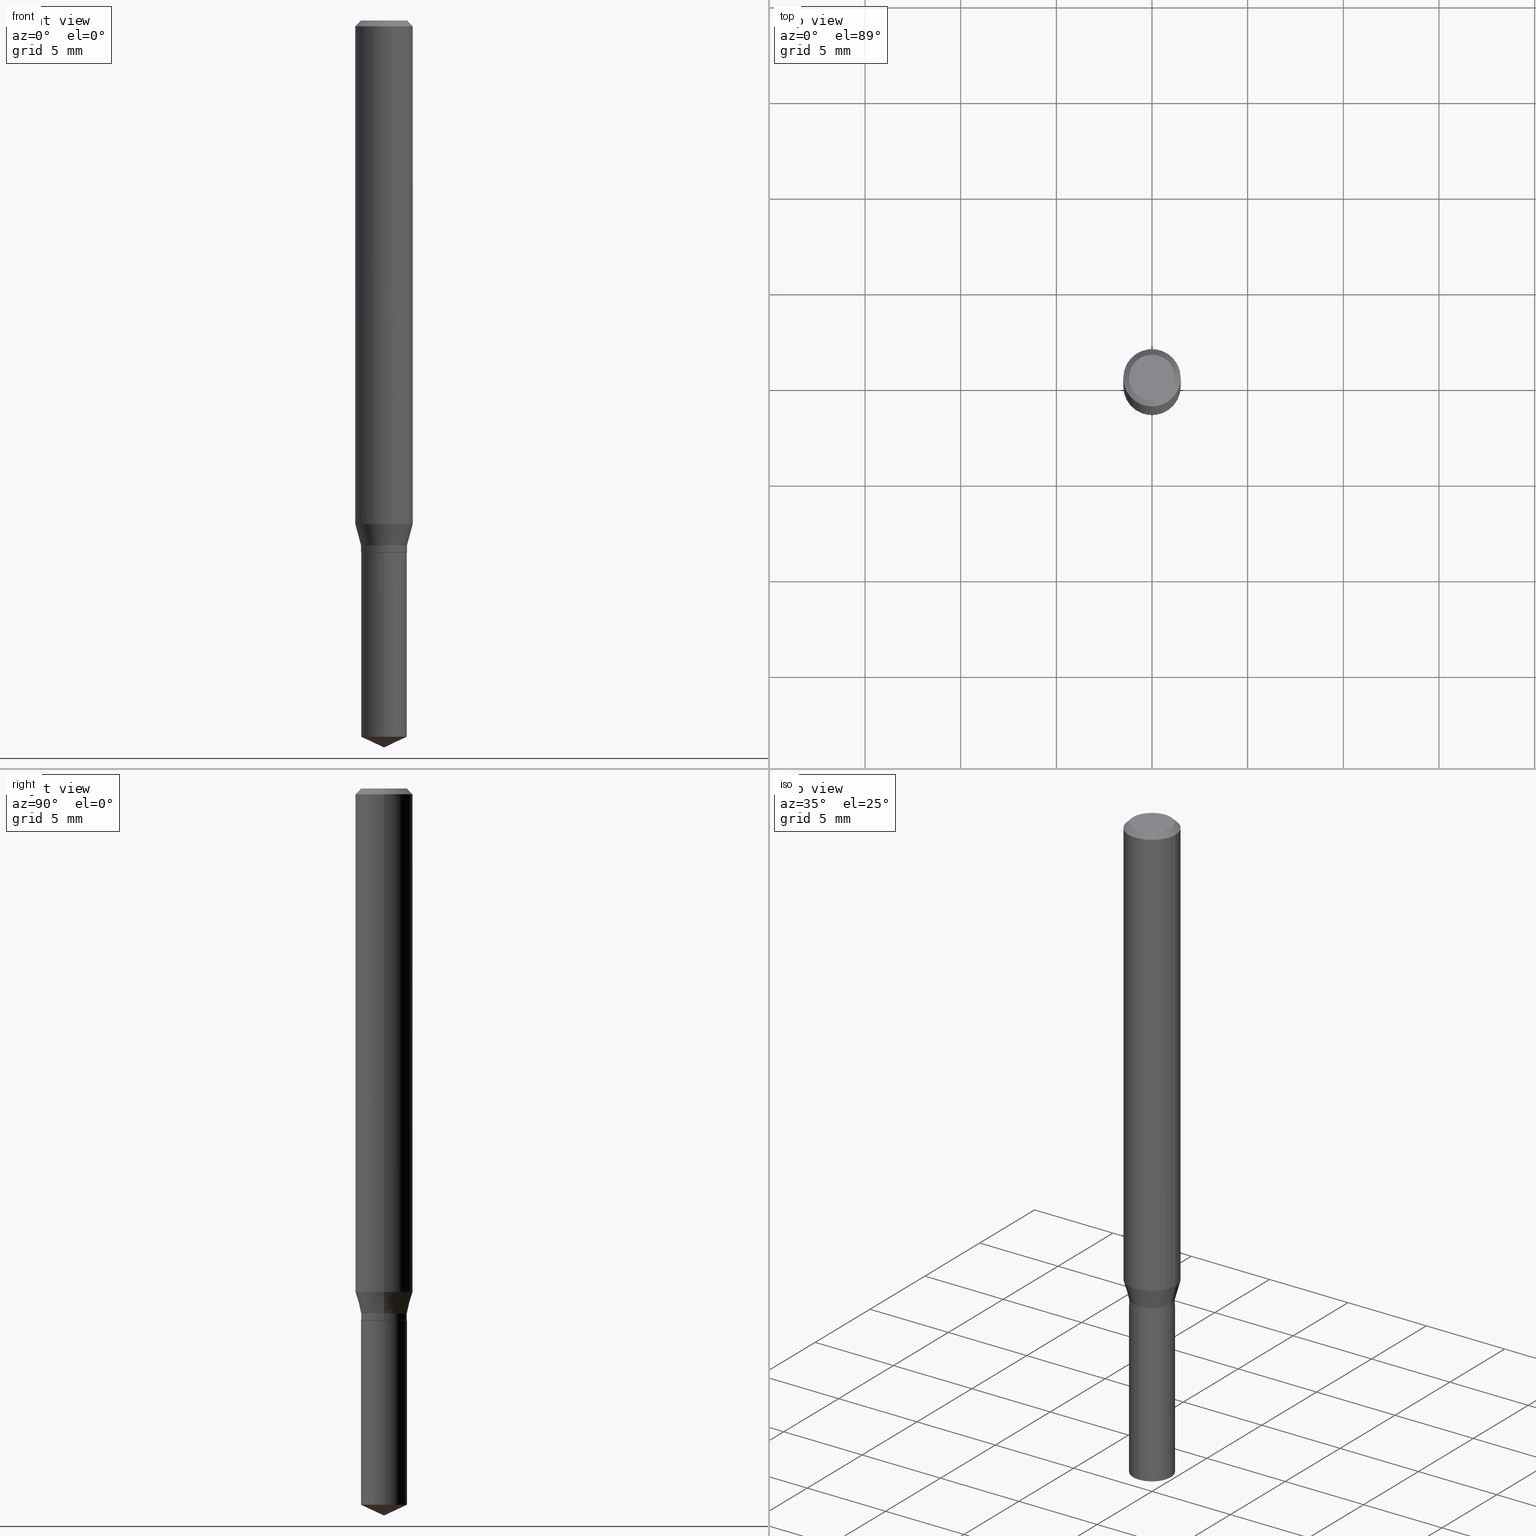
[diagram: canonical four-view strip — front | top / right | iso, engineering-drawing reading convention]
A machine part, canonical four-view strip (front | top / right | iso — engineering-drawing reading convention). The complete STEP part file that produces these views, byte-faithful:
ISO-10303-21;
HEADER;
FILE_DESCRIPTION (( 'STEP AP203' ),
    '1' );
FILE_NAME ('08385.STEP',
    '2024-04-24T14:47:35',
    ( '' ),
    ( '' ),
    'SwSTEP 2.0',
    'SolidWorks 2023',
    '' );
FILE_SCHEMA (( 'CONFIG_CONTROL_DESIGN' ));
ENDSEC;

DATA;
#1 = FACE_OUTER_BOUND ( 'NONE', #233, .T. ) ;
#2 = DIRECTION ( 'NONE',  ( 2.445358326776454949E-29, -3.491639551644474585E-15, -1.000000000000000000 ) ) ;
#3 = DIRECTION ( 'NONE',  ( -6.982962677686267499E-15, -1.000000000000000000, 3.520397390770433360E-15 ) ) ;
#4 = APPROVAL_ROLE ( '' ) ;
#5 = AXIS2_PLACEMENT_3D ( 'NONE', #383, #384, #78 ) ;
#6 = DIRECTION ( 'NONE',  ( 1.000000000000000000, -6.982962677686269077E-15, 0.000000000000000000 ) ) ;
#7 = DIRECTION ( 'NONE',  ( 0.7071067811865173747, -2.468850131081940727E-15, 0.7071067811865776598 ) ) ;
#8 = PERSON_AND_ORGANIZATION ( #63, #277 ) ;
#9 = CC_DESIGN_PERSON_AND_ORGANIZATION_ASSIGNMENT ( #8, #47, ( #85 ) ) ;
#10 = FACE_OUTER_BOUND ( 'NONE', #368, .T. ) ;
#11 = AXIS2_PLACEMENT_3D ( 'NONE', #200, #420, #71 ) ;
#12 = APPROVAL_PERSON_ORGANIZATION ( #36, #134, #242 ) ;
#13 = CARTESIAN_POINT ( 'NONE',  ( 2.641839951321803071E-29, -3.771847290352249705E-15, -1.080300000000000038 ) ) ;
#14 = CARTESIAN_POINT ( 'NONE',  ( -0.05905000000000013016, -3.198513253033061898E-15, -1.036261800470686723 ) ) ;
#15 = CC_DESIGN_PERSON_AND_ORGANIZATION_ASSIGNMENT ( #399, #163, ( #372 ) ) ;
#16 = CARTESIAN_POINT ( 'NONE',  ( -0.04724000000000000421, 3.504923541997677355E-16, -3.380025165670481712E-19 ) ) ;
#17 = ORIENTED_EDGE ( 'NONE', *, *, #199, .T. ) ;
#18 = AXIS2_PLACEMENT_3D ( 'NONE', #314, #68, #241 ) ;
#19 = DIRECTION ( 'NONE',  ( -2.445468806185136597E-29, 3.491481338843145583E-15, 1.000000000000000000 ) ) ;
#20 = EDGE_LOOP ( 'NONE', ( #419, #343, #187, #129 ) ) ;
#21 = DIRECTION ( 'NONE',  ( 1.000000000000000000, -6.982962677686267499E-15, 0.000000000000000000 ) ) ;
#22 = ORIENTED_EDGE ( 'NONE', *, *, #414, .T. ) ;
#23 = CARTESIAN_POINT ( 'NONE',  ( 3.357314426466833320E-16, 0.04724999999999617006, -1.094500000000000028 ) ) ;
#24 = VERTEX_POINT ( 'NONE', #223 ) ;
#25 = CARTESIAN_POINT ( 'NONE',  ( -9.261532836068574158E-28, 1.322424553111868898E-13, 37.87397874015748300 ) ) ;
#26 = VECTOR ( 'NONE', #375, 39.37007874015748143 ) ;
#27 = CC_DESIGN_APPROVAL ( #134, ( #482 ) ) ;
#28 = VERTEX_POINT ( 'NONE', #413 ) ;
#29 = PLANE ( 'NONE',  #347 ) ;
#30 = ORIENTED_EDGE ( 'NONE', *, *, #217, .F. ) ;
#31 = EDGE_CURVE ( 'NONE', #220, #132, #301, .T. ) ;
#32 = DIRECTION ( 'NONE',  ( 1.000000000000000000, -6.982962677686266711E-15, 4.876185090822587894E-29 ) ) ;
#33 = CARTESIAN_POINT ( 'NONE',  ( 2.676565608369631794E-29, -3.821426325363822773E-15, -1.094499999999999806 ) ) ;
#34 = VECTOR ( 'NONE', #256, 39.37007874015748143 ) ;
#35 = CIRCLE ( 'NONE', #123, 0.04724999999999999339 ) ;
#36 = PERSON_AND_ORGANIZATION ( #63, #277 ) ;
#37 = DIRECTION ( 'NONE',  ( 1.000000000000000000, -6.982962677686265133E-15, 0.000000000000000000 ) ) ;
#38 = CARTESIAN_POINT ( 'NONE',  ( -3.299449865206398677E-16, -0.04725000000000512818, -1.474066963152176113 ) ) ;
#39 = FACE_OUTER_BOUND ( 'NONE', #20, .T. ) ;
#40 = PRODUCT ( '08385', '08385', '', ( #352 ) ) ;
#41 = COORDINATED_UNIVERSAL_TIME_OFFSET ( 5, 0, .BEHIND. ) ;
#42 = MANIFOLD_SOLID_BREP ( 'Body-Move/Copy2[2]', #84 ) ;
#43 = DIRECTION ( 'NONE',  ( 0.2588190451025214611, 1.565188264969620982E-15, 0.9659258262890679791 ) ) ;
#44 = DATE_AND_TIME ( #79, #302 ) ;
#45 = AXIS2_PLACEMENT_3D ( 'NONE', #250, #319, #464 ) ;
#46 = DIRECTION ( 'NONE',  ( 2.445468806185136597E-29, -3.491481338843145583E-15, -1.000000000000000000 ) ) ;
#47 = PERSON_AND_ORGANIZATION_ROLE ( 'creator' ) ;
#48 = APPROVAL ( #170, 'UNSPECIFIED' ) ;
#49 = DIRECTION ( 'NONE',  ( 1.000000000000000000, -6.982962677686266711E-15, 0.000000000000000000 ) ) ;
#50 = EDGE_CURVE ( 'NONE', #408, #330, #379, .T. ) ;
#51 = FACE_OUTER_BOUND ( 'NONE', #231, .T. ) ;
#52 = AXIS2_PLACEMENT_3D ( 'NONE', #235, #388, #381 ) ;
#53 = VECTOR ( 'NONE', #43, 39.37007874015748143 ) ;
#54 = DIRECTION ( 'NONE',  ( -6.982962677686265922E-15, -1.000000000000000000, 2.890844437739961472E-15 ) ) ;
#55 = EDGE_CURVE ( 'NONE', #93, #475, #415, .T. ) ;
#56 = PRODUCT_DEFINITION_SHAPE ( 'NONE', 'NONE',  #482 ) ;
#57 = PERSON_AND_ORGANIZATION ( #63, #277 ) ;
#58 = CARTESIAN_POINT ( 'NONE',  ( 8.265746106709734507E-48, -1.180129479067563789E-33, -3.380025165646692144E-19 ) ) ;
#59 = ORIENTED_EDGE ( 'NONE', *, *, #192, .T. ) ;
#60 = DIRECTION ( 'NONE',  ( -6.982962677686265922E-15, -1.000000000000000000, 5.781688875479922944E-15 ) ) ;
#61 = DIRECTION ( 'NONE',  ( -6.982962677686267499E-15, -1.000000000000000000, 3.520397390770433360E-15 ) ) ;
#62 = ORIENTED_EDGE ( 'NONE', *, *, #489, .T. ) ;
#63 = PERSON ( 'UNSPECIFIED', 'UNSPECIFIED', 'UNSPECIFIED', ('UNSPECIFIED'), ('UNSPECIFIED'), ('UNSPECIFIED') ) ;
#64 = CARTESIAN_POINT ( 'NONE',  ( 0.04724999999999998646, -3.299449865206760074E-16, 2.303993526563579130E-30 ) ) ;
#65 = ADVANCED_FACE ( 'NONE', ( #100 ), #180, .T. ) ;
#66 = EDGE_LOOP ( 'NONE', ( #265, #104, #407, #143 ) ) ;
#67 = ORIENTED_EDGE ( 'NONE', *, *, #50, .F. ) ;
#68 = DIRECTION ( 'NONE',  ( -2.445358326776455510E-29, 3.491639551644474585E-15, 1.000000000000000000 ) ) ;
#69 = AXIS2_PLACEMENT_3D ( 'NONE', #155, #239, #145 ) ;
#70 = ORIENTED_EDGE ( 'NONE', *, *, #389, .T. ) ;
#71 = DIRECTION ( 'NONE',  ( 1.000000000000000000, -6.982962677686266711E-15, 4.876176775795935793E-29 ) ) ;
#72 = ORIENTED_EDGE ( 'NONE', *, *, #469, .F. ) ;
#73 = DIRECTION ( 'NONE',  ( -2.438088387897960049E-29, 3.491481338843145188E-15, 1.000000000000000000 ) ) ;
#74 = DIRECTION ( 'NONE',  ( -0.7071067811865452413, 2.468850131082233000E-15, -0.7071067811865497932 ) ) ;
#75 = CIRCLE ( 'NONE', #385, 0.05905000000000013016 ) ;
#76 = LOCAL_TIME ( 10, 47, 35.00000000000000000, #41 ) ;
#77 = ADVANCED_FACE ( 'NONE', ( #215 ), #92, .T. ) ;
#78 = DIRECTION ( 'NONE',  ( -6.982962677686265922E-15, -1.000000000000000000, 2.890844437739961472E-15 ) ) ;
#79 = CALENDAR_DATE ( 2024, 24, 4 ) ;
#80 = FACE_OUTER_BOUND ( 'NONE', #303, .T. ) ;
#81 =( LENGTH_UNIT ( ) NAMED_UNIT ( * ) SI_UNIT ( $, .METRE. ) );
#82 = CARTESIAN_POINT ( 'NONE',  ( 3.658744552762151624E-29, -5.223495605393188568E-15, -1.496099999999999985 ) ) ;
#83 = EDGE_CURVE ( 'NONE', #330, #24, #334, .T. ) ;
#84 = CLOSED_SHELL ( 'NONE', ( #234, #213, #65, #283, #225, #266, #406, #116, #434, #362, #206, #305 ) ) ;
#85 = PRODUCT_DEFINITION_FORMATION_WITH_SPECIFIED_SOURCE ( 'ANY', '', #40, .NOT_KNOWN. ) ;
#86 = DIRECTION ( 'NONE',  ( -2.445358326776455510E-29, 3.491639551644474585E-15, 1.000000000000000000 ) ) ;
#87 = DATE_AND_TIME ( #161, #130 ) ;
#88 = CARTESIAN_POINT ( 'NONE',  ( 2.676565608369631794E-29, -3.821426325363822773E-15, -1.094499999999999806 ) ) ;
#89 = CARTESIAN_POINT ( 'NONE',  ( -0.04724999999999997952, -3.460032494876678049E-15, -1.080300000000000038 ) ) ;
#90 = PERSON_AND_ORGANIZATION_ROLE ( 'design_supplier' ) ;
#91 = ORIENTED_EDGE ( 'NONE', *, *, #489, .F. ) ;
#92 = CONICAL_SURFACE ( 'NONE', #166, 84.42940631927483253, 1.134464013796318227 ) ;
#93 = VERTEX_POINT ( 'NONE', #331 ) ;
#94 = ORIENTED_EDGE ( 'NONE', *, *, #172, .F. ) ;
#95 = DATE_AND_TIME ( #288, #364 ) ;
#96 = VERTEX_POINT ( 'NONE', #23 ) ;
#97 = ORIENTED_EDGE ( 'NONE', *, *, #471, .F. ) ;
#98 = VECTOR ( 'NONE', #74, 39.37007874015748143 ) ;
#99 = AXIS2_PLACEMENT_3D ( 'NONE', #13, #164, #433 ) ;
#100 = FACE_OUTER_BOUND ( 'NONE', #179, .T. ) ;
#101 = ORIENTED_EDGE ( 'NONE', *, *, #31, .T. ) ;
#102 = ORIENTED_EDGE ( 'NONE', *, *, #144, .F. ) ;
#103 = DIRECTION ( 'NONE',  ( -2.445468806185136597E-29, 3.491481338843145583E-15, 1.000000000000000000 ) ) ;
#104 = ORIENTED_EDGE ( 'NONE', *, *, #471, .T. ) ;
#105 = FACE_OUTER_BOUND ( 'NONE', #488, .T. ) ;
#106 = ORIENTED_EDGE ( 'NONE', *, *, #217, .T. ) ;
#107 = FACE_OUTER_BOUND ( 'NONE', #298, .T. ) ;
#108 = DIRECTION ( 'NONE',  ( 1.000000000000000000, -6.982962677686265922E-15, 4.876176775795935793E-29 ) ) ;
#109 = CC_DESIGN_DATE_AND_TIME_ASSIGNMENT ( #95, #168, ( #372 ) ) ;
#110 = APPROVAL_STATUS ( 'not_yet_approved' ) ;
#111 = DIRECTION ( 'NONE',  ( 6.982962677686265922E-15, 1.000000000000000000, -3.491639551644474585E-15 ) ) ;
#112 = CONICAL_SURFACE ( 'NONE', #269, 84.42940631927483253, 1.134464013796318227 ) ;
#113 = AXIS2_PLACEMENT_3D ( 'NONE', #285, #251, #6 ) ;
#114 = DIRECTION ( 'NONE',  ( 1.000000000000000000, -6.982962677686269077E-15, 0.000000000000000000 ) ) ;
#115 = APPLICATION_PROTOCOL_DEFINITION ( 'international standard', 'config_control_design', 1994, #397 ) ;
#116 = ADVANCED_FACE ( 'NONE', ( #403 ), #182, .T. ) ;
#117 = LINE ( 'NONE', #82, #325 ) ;
#118 = DIRECTION ( 'NONE',  ( -2.445358326776455790E-29, 3.491639551644474585E-15, 1.000000000000000000 ) ) ;
#119 = DIRECTION ( 'NONE',  ( -2.445358326776455510E-29, 3.491639551644474585E-15, 1.000000000000000000 ) ) ;
#120 = SHAPE_DEFINITION_REPRESENTATION ( #56, #441 ) ;
#121 = CONICAL_SURFACE ( 'NONE', #432, 0.04724999999999997952, 0.2617993877991501850 ) ;
#122 = CIRCLE ( 'NONE', #229, 0.05905000000000013016 ) ;
#123 = AXIS2_PLACEMENT_3D ( 'NONE', #167, #119, #54 ) ;
#124 = CARTESIAN_POINT ( 'NONE',  ( -3.299449865206492354E-16, -0.04725000000000382366, -1.094499999999999806 ) ) ;
#125 = EDGE_CURVE ( 'NONE', #378, #214, #142, .T. ) ;
#126 = DIRECTION ( 'NONE',  ( -6.982962677686265922E-15, -1.000000000000000000, 2.890844437739961472E-15 ) ) ;
#127 = DESIGN_CONTEXT ( 'detailed design', #228, 'design' ) ;
#128 = DATE_AND_TIME ( #249, #141 ) ;
#129 = ORIENTED_EDGE ( 'NONE', *, *, #414, .F. ) ;
#130 = LOCAL_TIME ( 10, 47, 35.00000000000000000, #284 ) ;
#131 = DIRECTION ( 'NONE',  ( 1.000000000000000000, -6.982962677686266711E-15, 4.876185090822587894E-29 ) ) ;
#132 = VERTEX_POINT ( 'NONE', #16 ) ;
#133 = LINE ( 'NONE', #297, #195 ) ;
#134 = APPROVAL ( #315, 'UNSPECIFIED' ) ;
#135 = CARTESIAN_POINT ( 'NONE',  ( 2.675342873966538993E-29, -3.819680584694400481E-15, -1.093999999999999861 ) ) ;
#136 = ORIENTED_EDGE ( 'NONE', *, *, #165, .T. ) ;
#137 = ORIENTED_EDGE ( 'NONE', *, *, #427, .T. ) ;
#138 = ORIENTED_EDGE ( 'NONE', *, *, #154, .T. ) ;
#139 = DIRECTION ( 'NONE',  ( -2.445358326776455510E-29, 3.491639551644474585E-15, 1.000000000000000000 ) ) ;
#140 = AXIS2_PLACEMENT_3D ( 'NONE', #230, #189, #351 ) ;
#141 = LOCAL_TIME ( 10, 47, 35.00000000000000000, #252 ) ;
#142 = LINE ( 'NONE', #485, #210 ) ;
#143 = ORIENTED_EDGE ( 'NONE', *, *, #83, .F. ) ;
#144 = EDGE_CURVE ( 'NONE', #416, #440, #473, .T. ) ;
#145 = DIRECTION ( 'NONE',  ( 1.000000000000000000, 0.000000000000000000, 0.000000000000000000 ) ) ;
#146 = CARTESIAN_POINT ( 'NONE',  ( 0.000000000000000000, 0.000000000000000000, 0.000000000000000000 ) ) ;
#147 = ORIENTED_EDGE ( 'NONE', *, *, #290, .T. ) ;
#148 = CARTESIAN_POINT ( 'NONE',  ( 0.04724000000000000421, -3.852183633974369345E-16, -3.380025165621689721E-19 ) ) ;
#149 = ORIENTED_EDGE ( 'NONE', *, *, #55, .F. ) ;
#150 = DIRECTION ( 'NONE',  ( -2.445468806185136597E-29, 3.491481338843145583E-15, 1.000000000000000000 ) ) ;
#151 = DIMENSIONAL_EXPONENTS ( 1.000000000000000000, 0.000000000000000000, 0.000000000000000000, 0.000000000000000000, 0.000000000000000000, 0.000000000000000000, 0.000000000000000000 ) ;
#152 = CIRCLE ( 'NONE', #221, 0.05904999999999999832 ) ;
#153 = DIRECTION ( 'NONE',  ( -2.445468806185136597E-29, 3.491481338843145583E-15, 1.000000000000000000 ) ) ;
#154 = EDGE_CURVE ( 'NONE', #214, #440, #193, .T. ) ;
#155 = CARTESIAN_POINT ( 'NONE',  ( 0.000000000000000000, 0.000000000000000000, 0.000000000000000000 ) ) ;
#156 = CARTESIAN_POINT ( 'NONE',  ( 2.534145908092310761E-29, -3.618088738499401785E-15, -1.036261800470686723 ) ) ;
#157 = ADVANCED_FACE ( 'NONE', ( #226 ), #112, .T. ) ;
#158 = PERSON_AND_ORGANIZATION ( #63, #277 ) ;
#159 = LINE ( 'NONE', #271, #98 ) ;
#160 = CARTESIAN_POINT ( 'NONE',  ( 0.04674999999999999295, -4.147879830545655774E-15, -1.094499999999999806 ) ) ;
#161 = CALENDAR_DATE ( 2024, 24, 4 ) ;
#162 = FACE_OUTER_BOUND ( 'NONE', #486, .T. ) ;
#163 = PERSON_AND_ORGANIZATION_ROLE ( 'classification_officer' ) ;
#164 = DIRECTION ( 'NONE',  ( -2.445468806185136597E-29, 3.491481338843145583E-15, 1.000000000000000000 ) ) ;
#165 = EDGE_CURVE ( 'NONE', #378, #416, #75, .T. ) ;
#166 = AXIS2_PLACEMENT_3D ( 'NONE', #442, #405, #61 ) ;
#167 = CARTESIAN_POINT ( 'NONE',  ( 2.676565608369631794E-29, -3.821426325363822773E-15, -1.094499999999999806 ) ) ;
#168 = DATE_TIME_ROLE ( 'classification_date' ) ;
#169 = CARTESIAN_POINT ( 'NONE',  ( 2.676565608369631794E-29, -3.821426325363822773E-15, -1.094499999999999806 ) ) ;
#170 = APPROVAL_STATUS ( 'not_yet_approved' ) ;
#171 = ORIENTED_EDGE ( 'NONE', *, *, #296, .F. ) ;
#172 = EDGE_CURVE ( 'NONE', #304, #479, #370, .T. ) ;
#173 = ORIENTED_EDGE ( 'NONE', *, *, #125, .F. ) ;
#174 = PERSON_AND_ORGANIZATION ( #63, #277 ) ;
#175 = EDGE_CURVE ( 'NONE', #336, #416, #418, .T. ) ;
#176 = CIRCLE ( 'NONE', #316, 0.04724999999999999339 ) ;
#177 = CIRCLE ( 'NONE', #333, 0.04674999999999999295 ) ;
#178 = ORIENTED_EDGE ( 'NONE', *, *, #50, .T. ) ;
#179 = EDGE_LOOP ( 'NONE', ( #136, #227, #483, #173 ) ) ;
#180 = CYLINDRICAL_SURFACE ( 'NONE', #438, 0.05905000000000006771 ) ;
#181 = ORIENTED_EDGE ( 'NONE', *, *, #392, .F. ) ;
#182 = CYLINDRICAL_SURFACE ( 'NONE', #261, 0.05905000000000006771 ) ;
#183 = ORIENTED_EDGE ( 'NONE', *, *, #55, .T. ) ;
#184 =( NAMED_UNIT ( * ) SI_UNIT ( $, .STERADIAN. ) SOLID_ANGLE_UNIT ( ) );
#185 = AXIS2_PLACEMENT_3D ( 'NONE', #135, #452, #21 ) ;
#186 = CC_DESIGN_SECURITY_CLASSIFICATION ( #372, ( #85 ) ) ;
#187 = ORIENTED_EDGE ( 'NONE', *, *, #423, .F. ) ;
#188 = ORIENTED_EDGE ( 'NONE', *, *, #447, .T. ) ;
#189 = DIRECTION ( 'NONE',  ( 2.445468806185136597E-29, -3.491481338843145583E-15, -1.000000000000000000 ) ) ;
#190 = ORIENTED_EDGE ( 'NONE', *, *, #447, .F. ) ;
#191 = FACE_OUTER_BOUND ( 'NONE', #306, .T. ) ;
#192 = EDGE_CURVE ( 'NONE', #132, #440, #159, .T. ) ;
#193 = CIRCLE ( 'NONE', #339, 0.05904999999999999832 ) ;
#194 = CARTESIAN_POINT ( 'NONE',  ( 2.676565608369631794E-29, -3.821426325363822773E-15, -1.094499999999999806 ) ) ;
#195 = VECTOR ( 'NONE', #412, 39.37007874015748143 ) ;
#196 = CONICAL_SURFACE ( 'NONE', #446, 0.05904999999999999832, 0.7853981633974450594 ) ;
#197 = COORDINATED_UNIVERSAL_TIME_OFFSET ( 5, 0, .BEHIND. ) ;
#198 = CARTESIAN_POINT ( 'NONE',  ( 2.676565608369631794E-29, -3.821426325363822773E-15, -1.094499999999999806 ) ) ;
#199 = EDGE_CURVE ( 'NONE', #28, #475, #445, .T. ) ;
#200 = CARTESIAN_POINT ( 'NONE',  ( 0.000000000000000000, 0.000000000000000000, 0.000000000000000000 ) ) ;
#201 = CALENDAR_DATE ( 2024, 24, 4 ) ;
#202 = CARTESIAN_POINT ( 'NONE',  ( 4.132873053354867254E-48, -5.900647395337818946E-34, -1.690012582823346072E-19 ) ) ;
#203 = AXIS2_PLACEMENT_3D ( 'NONE', #198, #276, #312 ) ;
#204 = AXIS2_PLACEMENT_3D ( 'NONE', #291, #429, #49 ) ;
#205 = DIRECTION ( 'NONE',  ( -1.000000000000000000, 6.982962677686266711E-15, 0.000000000000000000 ) ) ;
#206 = ADVANCED_FACE ( 'NONE', ( #107 ), #459, .F. ) ;
#207 = CARTESIAN_POINT ( 'NONE',  ( -0.04724999999999998646, -3.460032494876678049E-15, -1.093999999999999861 ) ) ;
#208 = CC_DESIGN_PERSON_AND_ORGANIZATION_ASSIGNMENT ( #174, #90, ( #85 ) ) ;
#209 = LINE ( 'NONE', #361, #53 ) ;
#210 = VECTOR ( 'NONE', #367, 39.37007874015748143 ) ;
#211 = CIRCLE ( 'NONE', #409, 0.04724999999999999339 ) ;
#212 = DIRECTION ( 'NONE',  ( -2.445358326776455790E-29, 3.491639551644474585E-15, 1.000000000000000000 ) ) ;
#213 = ADVANCED_FACE ( 'NONE', ( #317 ), #253, .T. ) ;
#214 = VERTEX_POINT ( 'NONE', #422 ) ;
#215 = FACE_OUTER_BOUND ( 'NONE', #371, .T. ) ;
#216 = MANIFOLD_SOLID_BREP ( 'Body-Move/Copy2[1]', #425 ) ;
#217 = EDGE_CURVE ( 'NONE', #416, #378, #122, .T. ) ;
#218 = APPROVAL_ROLE ( '' ) ;
#219 = CARTESIAN_POINT ( 'NONE',  ( -0.05905000000000006771, 4.195754854663396409E-16, -2.904631170795525045E-30 ) ) ;
#220 = VERTEX_POINT ( 'NONE', #148 ) ;
#221 = AXIS2_PLACEMENT_3D ( 'NONE', #396, #398, #322 ) ;
#222 = ORIENTED_EDGE ( 'NONE', *, *, #279, .T. ) ;
#223 = CARTESIAN_POINT ( 'NONE',  ( 0.04724999999999997952, -4.101792276872925713E-15, -1.080300000000000038 ) ) ;
#224 = ORIENTED_EDGE ( 'NONE', *, *, #275, .F. ) ;
#225 = ADVANCED_FACE ( 'NONE', ( #387 ), #274, .T. ) ;
#226 = FACE_OUTER_BOUND ( 'NONE', #257, .T. ) ;
#227 = ORIENTED_EDGE ( 'NONE', *, *, #144, .T. ) ;
#228 = APPLICATION_CONTEXT ( 'configuration controlled 3d designs of mechanical parts and assemblies' ) ;
#229 = AXIS2_PLACEMENT_3D ( 'NONE', #156, #103, #37 ) ;
#230 = CARTESIAN_POINT ( 'NONE',  ( 2.888098660104664642E-31, -4.123439461173780879E-17, -0.01181000000000007565 ) ) ;
#231 = EDGE_LOOP ( 'NONE', ( #72, #310, #22, #67 ) ) ;
#232 = CARTESIAN_POINT ( 'NONE',  ( 8.265746106709734507E-48, -1.180129479067563789E-33, -3.380025165646692144E-19 ) ) ;
#233 = EDGE_LOOP ( 'NONE', ( #259, #382 ) ) ;
#234 = ADVANCED_FACE ( 'NONE', ( #39 ), #236, .T. ) ;
#235 = CARTESIAN_POINT ( 'NONE',  ( 0.000000000000000000, 0.000000000000000000, 0.000000000000000000 ) ) ;
#236 = CONICAL_SURFACE ( 'NONE', #203, 0.04674999999999999295, 0.7853981633974056464 ) ;
#237 = DIRECTION ( 'NONE',  ( -0.2588190451025214611, 5.211531920934550253E-15, 0.9659258262890679791 ) ) ;
#238 =( GEOMETRIC_REPRESENTATION_CONTEXT ( 3 ) GLOBAL_UNCERTAINTY_ASSIGNED_CONTEXT ( ( #327 ) ) GLOBAL_UNIT_ASSIGNED_CONTEXT ( ( #278, #281, #184 ) ) REPRESENTATION_CONTEXT ( 'NONE', 'WORKASPACE' ) );
#239 = DIRECTION ( 'NONE',  ( 0.000000000000000000, 0.000000000000000000, 1.000000000000000000 ) ) ;
#240 = ADVANCED_FACE ( 'NONE', ( #1 ), #29, .F. ) ;
#241 = DIRECTION ( 'NONE',  ( -6.982962677686265922E-15, -1.000000000000000000, 5.781688875479922944E-15 ) ) ;
#242 = APPROVAL_ROLE ( '' ) ;
#243 = CARTESIAN_POINT ( 'NONE',  ( 0.04724999999999998646, -4.149625571215076488E-15, -1.093999999999999861 ) ) ;
#244 = APPLICATION_PROTOCOL_DEFINITION ( 'international standard', 'config_control_design', 1994, #228 ) ;
#245 = DIRECTION ( 'NONE',  ( 6.439704144417036664E-15, 0.9063077870366530453, 0.4226182617406927244 ) ) ;
#246 = AXIS2_PLACEMENT_3D ( 'NONE', #58, #373, #131 ) ;
#247 = CARTESIAN_POINT ( 'NONE',  ( -0.04724999999999998646, 3.357314426466472416E-16, -2.324196830145442465E-30 ) ) ;
#248 = DIRECTION ( 'NONE',  ( 2.438088387897960049E-29, -3.491481338843145188E-15, -1.000000000000000000 ) ) ;
#249 = CALENDAR_DATE ( 2024, 24, 4 ) ;
#250 = CARTESIAN_POINT ( 'NONE',  ( 2.675342873966538993E-29, -3.819680584694400481E-15, -1.093999999999999861 ) ) ;
#251 = DIRECTION ( 'NONE',  ( -2.445468806185136597E-29, 3.491481338843145583E-15, 1.000000000000000000 ) ) ;
#252 = COORDINATED_UNIVERSAL_TIME_OFFSET ( 5, 0, .BEHIND. ) ;
#253 = CONICAL_SURFACE ( 'NONE', #140, 0.05904999999999999832, 0.7853981633974450594 ) ;
#254 = VECTOR ( 'NONE', #7, 39.37007874015748143 ) ;
#255 = DIRECTION ( 'NONE',  ( 1.000000000000000000, -6.982962677686266711E-15, 4.876176775795936353E-29 ) ) ;
#256 = DIRECTION ( 'NONE',  ( -6.328713451373382000E-15, -0.9063077870366501587, 0.4226182617406989972 ) ) ;
#257 = EDGE_LOOP ( 'NONE', ( #149, #137, #190 ) ) ;
#258 = ORIENTED_EDGE ( 'NONE', *, *, #308, .T. ) ;
#259 = ORIENTED_EDGE ( 'NONE', *, *, #392, .T. ) ;
#260 = ADVANCED_FACE ( 'NONE', ( #267 ), #428, .T. ) ;
#261 = AXIS2_PLACEMENT_3D ( 'NONE', #146, #338, #480 ) ;
#262 = CONICAL_SURFACE ( 'NONE', #204, 0.04674999999999999295, 0.7853981633974056464 ) ;
#263 = DIRECTION ( 'NONE',  ( -2.445468806185136597E-29, 3.491481338843145583E-15, 1.000000000000000000 ) ) ;
#264 = DIRECTION ( 'NONE',  ( 1.000000000000000000, -6.982962677686266711E-15, 0.000000000000000000 ) ) ;
#265 = ORIENTED_EDGE ( 'NONE', *, *, #423, .T. ) ;
#266 = ADVANCED_FACE ( 'NONE', ( #105 ), #309, .T. ) ;
#267 = FACE_OUTER_BOUND ( 'NONE', #335, .T. ) ;
#268 = ORIENTED_EDGE ( 'NONE', *, *, #192, .F. ) ;
#269 = AXIS2_PLACEMENT_3D ( 'NONE', #25, #476, #3 ) ;
#270 = CIRCLE ( 'NONE', #113, 0.04724999999999997952 ) ;
#271 = CARTESIAN_POINT ( 'NONE',  ( -0.05904999999999999832, 3.711095515056362547E-16, -0.01181000000000007565 ) ) ;
#272 = EDGE_LOOP ( 'NONE', ( #102, #106, #374, #294 ) ) ;
#273 = CARTESIAN_POINT ( 'NONE',  ( 2.676565608369631794E-29, -3.821426325363822773E-15, -1.094499999999999806 ) ) ;
#274 = CYLINDRICAL_SURFACE ( 'NONE', #52, 0.04724999999999998646 ) ;
#275 = EDGE_CURVE ( 'NONE', #96, #421, #176, .T. ) ;
#276 = DIRECTION ( 'NONE',  ( -2.445468806185136597E-29, 3.491481338843145583E-15, 1.000000000000000000 ) ) ;
#277 = ORGANIZATION ( 'UNSPECIFIED', 'UNSPECIFIED', '' ) ;
#278 =( CONVERSION_BASED_UNIT ( 'INCH', #354 ) LENGTH_UNIT ( ) NAMED_UNIT ( #151 ) );
#279 = EDGE_CURVE ( 'NONE', #132, #220, #363, .T. ) ;
#280 = DIRECTION ( 'NONE',  ( 0.7071067811865452413, -7.319954787623248157E-15, -0.7071067811865497932 ) ) ;
#281 =( NAMED_UNIT ( * ) PLANE_ANGLE_UNIT ( ) SI_UNIT ( $, .RADIAN. ) );
#282 = LINE ( 'NONE', #356, #426 ) ;
#283 = ADVANCED_FACE ( 'NONE', ( #191 ), #121, .T. ) ;
#284 = COORDINATED_UNIVERSAL_TIME_OFFSET ( 5, 0, .BEHIND. ) ;
#285 = CARTESIAN_POINT ( 'NONE',  ( 2.641839951321803071E-29, -3.771847290352249705E-15, -1.080300000000000038 ) ) ;
#286 = VECTOR ( 'NONE', #280, 39.37007874015748143 ) ;
#287 = APPROVAL_PERSON_ORGANIZATION ( #57, #48, #218 ) ;
#288 = CALENDAR_DATE ( 2024, 24, 4 ) ;
#289 = CARTESIAN_POINT ( 'NONE',  ( -0.05904999999999999832, -1.410086081089229475E-15, -0.01181000000000007565 ) ) ;
#290 = EDGE_CURVE ( 'NONE', #440, #214, #152, .T. ) ;
#291 = CARTESIAN_POINT ( 'NONE',  ( 2.676565608369631794E-29, -3.821426325363822773E-15, -1.094499999999999806 ) ) ;
#292 = EDGE_LOOP ( 'NONE', ( #376, #295, #138, #268 ) ) ;
#293 = APPROVAL_PERSON_ORGANIZATION ( #350, #366, #4 ) ;
#294 = ORIENTED_EDGE ( 'NONE', *, *, #290, .F. ) ;
#295 = ORIENTED_EDGE ( 'NONE', *, *, #296, .T. ) ;
#296 = EDGE_CURVE ( 'NONE', #220, #214, #400, .T. ) ;
#297 = CARTESIAN_POINT ( 'NONE',  ( -0.04674999999999999295, -3.489247596395975839E-15, -1.094499999999999806 ) ) ;
#298 = EDGE_LOOP ( 'NONE', ( #345, #94 ) ) ;
#299 = CC_DESIGN_PERSON_AND_ORGANIZATION_ASSIGNMENT ( #158, #430, ( #40 ) ) ;
#300 = ORIENTED_EDGE ( 'NONE', *, *, #83, .T. ) ;
#301 = CIRCLE ( 'NONE', #246, 0.04724000000000000421 ) ;
#302 = LOCAL_TIME ( 10, 47, 35.00000000000000000, #197 ) ;
#303 = EDGE_LOOP ( 'NONE', ( #222, #101 ) ) ;
#304 = VERTEX_POINT ( 'NONE', #391 ) ;
#305 = ADVANCED_FACE ( 'NONE', ( #51 ), #262, .T. ) ;
#306 = EDGE_LOOP ( 'NONE', ( #477, #332, #444, #439 ) ) ;
#307 = ORIENTED_EDGE ( 'NONE', *, *, #321, .T. ) ;
#308 = EDGE_CURVE ( 'NONE', #24, #378, #209, .T. ) ;
#309 = CYLINDRICAL_SURFACE ( 'NONE', #11, 0.04724999999999998646 ) ;
#310 = ORIENTED_EDGE ( 'NONE', *, *, #172, .T. ) ;
#311 = CARTESIAN_POINT ( 'NONE',  ( 2.676565608369631794E-29, -3.821426325363822773E-15, -1.094499999999999806 ) ) ;
#312 = DIRECTION ( 'NONE',  ( 1.000000000000000000, -6.982962677686266711E-15, 0.000000000000000000 ) ) ;
#313 = CARTESIAN_POINT ( 'NONE',  ( 3.357314426466740136E-16, 0.04724999999999617006, -1.094500000000000028 ) ) ;
#314 = CARTESIAN_POINT ( 'NONE',  ( 3.604742842283059142E-29, -5.146737346403543071E-15, -1.474066963152176557 ) ) ;
#315 = APPROVAL_STATUS ( 'not_yet_approved' ) ;
#316 = AXIS2_PLACEMENT_3D ( 'NONE', #33, #349, #458 ) ;
#317 = FACE_OUTER_BOUND ( 'NONE', #292, .T. ) ;
#318 = CARTESIAN_POINT ( 'NONE',  ( 0.04674999999999999295, -4.147879830545655774E-15, -1.094499999999999806 ) ) ;
#319 = DIRECTION ( 'NONE',  ( -2.445468806185136597E-29, 3.491481338843145583E-15, 1.000000000000000000 ) ) ;
#320 = DATE_TIME_ROLE ( 'creation_date' ) ;
#321 = EDGE_CURVE ( 'NONE', #475, #421, #282, .T. ) ;
#322 = DIRECTION ( 'NONE',  ( 1.000000000000000000, -6.982962677686266711E-15, 0.000000000000000000 ) ) ;
#323 = CARTESIAN_POINT ( 'NONE',  ( 0.05904999999999999832, -4.463468013801466955E-16, -0.01181000000000007565 ) ) ;
#324 = AXIS2_PLACEMENT_3D ( 'NONE', #311, #153, #344 ) ;
#325 = VECTOR ( 'NONE', #245, 39.37007874015748854 ) ;
#326 = DIRECTION ( 'NONE',  ( -2.445468806185136597E-29, 3.491481338843145583E-15, 1.000000000000000000 ) ) ;
#327 = UNCERTAINTY_MEASURE_WITH_UNIT (LENGTH_MEASURE( 1.000000000000000082E-05 ), #278, 'distance_accuracy_value', 'NONE');
#328 = ADVANCED_FACE ( 'NONE', ( #162 ), #358, .T. ) ;
#329 = COORDINATED_UNIVERSAL_TIME_OFFSET ( 5, 0, .BEHIND. ) ;
#330 = VERTEX_POINT ( 'NONE', #243 ) ;
#331 = CARTESIAN_POINT ( 'NONE',  ( 3.658500592690254185E-29, -5.223841933215297403E-15, -1.496099999999999985 ) ) ;
#332 = ORIENTED_EDGE ( 'NONE', *, *, #175, .T. ) ;
#333 = AXIS2_PLACEMENT_3D ( 'NONE', #88, #326, #465 ) ;
#334 = LINE ( 'NONE', #64, #26 ) ;
#335 = EDGE_LOOP ( 'NONE', ( #188, #62, #181, #410 ) ) ;
#336 = VERTEX_POINT ( 'NONE', #89 ) ;
#337 = ORIENTED_EDGE ( 'NONE', *, *, #389, .F. ) ;
#338 = DIRECTION ( 'NONE',  ( -2.445468806185136597E-29, 3.491481338843145583E-15, 1.000000000000000000 ) ) ;
#339 = AXIS2_PLACEMENT_3D ( 'NONE', #369, #19, #264 ) ;
#340 = CC_DESIGN_APPROVAL ( #48, ( #372 ) ) ;
#341 = PERSON_AND_ORGANIZATION_ROLE ( 'creator' ) ;
#342 = CARTESIAN_POINT ( 'NONE',  ( 3.658500592690254185E-29, -5.223841933215297403E-15, -1.496099999999999985 ) ) ;
#343 = ORIENTED_EDGE ( 'NONE', *, *, #469, .T. ) ;
#344 = DIRECTION ( 'NONE',  ( 1.000000000000000000, -6.982962677686266711E-15, 0.000000000000000000 ) ) ;
#345 = ORIENTED_EDGE ( 'NONE', *, *, #386, .F. ) ;
#346 = CARTESIAN_POINT ( 'NONE',  ( 2.641839951321803071E-29, -3.771847290352249705E-15, -1.080300000000000038 ) ) ;
#347 = AXIS2_PLACEMENT_3D ( 'NONE', #194, #2, #111 ) ;
#348 = AXIS2_PLACEMENT_3D ( 'NONE', #360, #436, #114 ) ;
#349 = DIRECTION ( 'NONE',  ( -2.445358326776455510E-29, 3.491639551644474585E-15, 1.000000000000000000 ) ) ;
#350 = PERSON_AND_ORGANIZATION ( #63, #277 ) ;
#351 = DIRECTION ( 'NONE',  ( -1.000000000000000000, 6.982962677686266711E-15, 0.000000000000000000 ) ) ;
#352 = MECHANICAL_CONTEXT ( 'NONE', #397, 'mechanical' ) ;
#353 = DIRECTION ( 'NONE',  ( -2.445468806185136597E-29, 3.491481338843145583E-15, 1.000000000000000000 ) ) ;
#354 = LENGTH_MEASURE_WITH_UNIT ( LENGTH_MEASURE( 0.02539999999999999897 ), #81 );
#355 = VECTOR ( 'NONE', #237, 39.37007874015748143 ) ;
#356 = CARTESIAN_POINT ( 'NONE',  ( -3.299449865206492354E-16, -0.04725000000000382366, -1.094499999999999806 ) ) ;
#357 = DATE_AND_TIME ( #201, #76 ) ;
#358 = CYLINDRICAL_SURFACE ( 'NONE', #380, 0.04724999999999999339 ) ;
#359 = APPROVAL_DATE_TIME ( #87, #366 ) ;
#360 = CARTESIAN_POINT ( 'NONE',  ( 2.641839951321803071E-29, -3.771847290352249705E-15, -1.080300000000000038 ) ) ;
#361 = CARTESIAN_POINT ( 'NONE',  ( 0.04724999999999997952, -4.101792276872925713E-15, -1.080300000000000038 ) ) ;
#362 = ADVANCED_FACE ( 'NONE', ( #80 ), #431, .F. ) ;
#363 = CIRCLE ( 'NONE', #393, 0.04724000000000000421 ) ;
#364 = LOCAL_TIME ( 10, 47, 35.00000000000000000, #329 ) ;
#365 = LINE ( 'NONE', #160, #254 ) ;
#366 = APPROVAL ( #110, 'UNSPECIFIED' ) ;
#367 = DIRECTION ( 'NONE',  ( -2.445468806185136877E-29, 3.491481338843145188E-15, 1.000000000000000000 ) ) ;
#368 = EDGE_LOOP ( 'NONE', ( #171, #472, #59, #147 ) ) ;
#369 = CARTESIAN_POINT ( 'NONE',  ( 2.888098660104664642E-31, -4.123439461173780879E-17, -0.01181000000000007565 ) ) ;
#370 = CIRCLE ( 'NONE', #324, 0.04674999999999999295 ) ;
#371 = EDGE_LOOP ( 'NONE', ( #455, #183, #449 ) ) ;
#372 = SECURITY_CLASSIFICATION ( '', '', #404 ) ;
#373 = DIRECTION ( 'NONE',  ( -2.445468806185136597E-29, 3.491481338843145583E-15, 1.000000000000000000 ) ) ;
#374 = ORIENTED_EDGE ( 'NONE', *, *, #125, .T. ) ;
#375 = DIRECTION ( 'NONE',  ( -2.445468806185136877E-29, 3.491481338843145188E-15, 1.000000000000000000 ) ) ;
#376 = ORIENTED_EDGE ( 'NONE', *, *, #31, .F. ) ;
#377 = PRODUCT_RELATED_PRODUCT_CATEGORY ( 'detail', '', ( #40 ) ) ;
#378 = VERTEX_POINT ( 'NONE', #463 ) ;
#379 = CIRCLE ( 'NONE', #185, 0.04724999999999998646 ) ;
#380 = AXIS2_PLACEMENT_3D ( 'NONE', #169, #86, #126 ) ;
#381 = DIRECTION ( 'NONE',  ( 1.000000000000000000, -6.982962677686266711E-15, 4.876176775795935793E-29 ) ) ;
#382 = ORIENTED_EDGE ( 'NONE', *, *, #275, .T. ) ;
#383 = CARTESIAN_POINT ( 'NONE',  ( 2.676565608369631794E-29, -3.821426325363822773E-15, -1.094499999999999806 ) ) ;
#384 = DIRECTION ( 'NONE',  ( -2.445358326776455510E-29, 3.491639551644474585E-15, 1.000000000000000000 ) ) ;
#385 = AXIS2_PLACEMENT_3D ( 'NONE', #457, #353, #454 ) ;
#386 = EDGE_CURVE ( 'NONE', #479, #304, #177, .T. ) ;
#387 = FACE_OUTER_BOUND ( 'NONE', #66, .T. ) ;
#388 = DIRECTION ( 'NONE',  ( -2.445468806185136597E-29, 3.491481338843145583E-15, 1.000000000000000000 ) ) ;
#389 = EDGE_CURVE ( 'NONE', #336, #24, #270, .T. ) ;
#390 = PERSON_AND_ORGANIZATION ( #63, #277 ) ;
#391 = CARTESIAN_POINT ( 'NONE',  ( -0.04674999999999999295, -3.486598369221864243E-15, -1.094499999999999806 ) ) ;
#392 = EDGE_CURVE ( 'NONE', #421, #96, #35, .T. ) ;
#393 = AXIS2_PLACEMENT_3D ( 'NONE', #232, #150, #32 ) ;
#394 = CARTESIAN_POINT ( 'NONE',  ( 2.888098660104664642E-31, -4.123439461173780879E-17, -0.01181000000000007565 ) ) ;
#395 = CC_DESIGN_APPROVAL ( #366, ( #85 ) ) ;
#396 = CARTESIAN_POINT ( 'NONE',  ( 2.888098660104664642E-31, -4.123439461173780879E-17, -0.01181000000000007565 ) ) ;
#397 = APPLICATION_CONTEXT ( 'configuration controlled 3d designs of mechanical parts and assemblies' ) ;
#398 = DIRECTION ( 'NONE',  ( -2.445468806185136597E-29, 3.491481338843145583E-15, 1.000000000000000000 ) ) ;
#399 = PERSON_AND_ORGANIZATION ( #63, #277 ) ;
#400 = LINE ( 'NONE', #323, #286 ) ;
#401 = VECTOR ( 'NONE', #448, 39.37007874015748143 ) ;
#402 = CIRCLE ( 'NONE', #45, 0.04724999999999998646 ) ;
#403 = FACE_OUTER_BOUND ( 'NONE', #272, .T. ) ;
#404 = SECURITY_CLASSIFICATION_LEVEL ( 'unclassified' ) ;
#405 = DIRECTION ( 'NONE',  ( -2.445358326776455510E-29, 3.491639551644474585E-15, 1.000000000000000000 ) ) ;
#406 = ADVANCED_FACE ( 'NONE', ( #468 ), #411, .T. ) ;
#407 = ORIENTED_EDGE ( 'NONE', *, *, #437, .F. ) ;
#408 = VERTEX_POINT ( 'NONE', #207 ) ;
#409 = AXIS2_PLACEMENT_3D ( 'NONE', #470, #139, #60 ) ;
#410 = ORIENTED_EDGE ( 'NONE', *, *, #321, .F. ) ;
#411 = CONICAL_SURFACE ( 'NONE', #348, 0.04724999999999997952, 0.2617993877991501850 ) ;
#412 = DIRECTION ( 'NONE',  ( -0.7071067811865173747, 7.493145998870245297E-15, 0.7071067811865776598 ) ) ;
#413 = CARTESIAN_POINT ( 'NONE',  ( 3.357314426466831841E-16, 0.04724999999999483086, -1.474066963152176779 ) ) ;
#414 = EDGE_CURVE ( 'NONE', #479, #330, #365, .T. ) ;
#415 = LINE ( 'NONE', #342, #34 ) ;
#416 = VERTEX_POINT ( 'NONE', #14 ) ;
#417 = LINE ( 'NONE', #247, #456 ) ;
#418 = LINE ( 'NONE', #487, #355 ) ;
#419 = ORIENTED_EDGE ( 'NONE', *, *, #386, .T. ) ;
#420 = DIRECTION ( 'NONE',  ( -2.445468806185136597E-29, 3.491481338843145583E-15, 1.000000000000000000 ) ) ;
#421 = VERTEX_POINT ( 'NONE', #124 ) ;
#422 = CARTESIAN_POINT ( 'NONE',  ( 0.05904999999999999832, -4.535783407291118600E-16, -0.01181000000000007565 ) ) ;
#423 = EDGE_CURVE ( 'NONE', #330, #408, #402, .T. ) ;
#424 = DIRECTION ( 'NONE',  ( -2.445468806185136597E-29, 3.491481338843145583E-15, 1.000000000000000000 ) ) ;
#425 = CLOSED_SHELL ( 'NONE', ( #260, #157, #77, #328, #240 ) ) ;
#426 = VECTOR ( 'NONE', #212, 39.37007874015748143 ) ;
#427 = EDGE_CURVE ( 'NONE', #93, #28, #117, .T. ) ;
#428 = CYLINDRICAL_SURFACE ( 'NONE', #5, 0.04724999999999999339 ) ;
#429 = DIRECTION ( 'NONE',  ( -2.445468806185136597E-29, 3.491481338843145583E-15, 1.000000000000000000 ) ) ;
#430 = PERSON_AND_ORGANIZATION_ROLE ( 'design_owner' ) ;
#431 = PLANE ( 'NONE',  #474 ) ;
#432 = AXIS2_PLACEMENT_3D ( 'NONE', #346, #424, #490 ) ;
#433 = DIRECTION ( 'NONE',  ( 1.000000000000000000, -6.982962677686269077E-15, 0.000000000000000000 ) ) ;
#434 = ADVANCED_FACE ( 'NONE', ( #10 ), #196, .T. ) ;
#435 = DIRECTION ( 'NONE',  ( -1.000000000000000000, 6.982962677686265922E-15, -4.876176775795935793E-29 ) ) ;
#436 = DIRECTION ( 'NONE',  ( -2.445468806185136597E-29, 3.491481338843145583E-15, 1.000000000000000000 ) ) ;
#437 = EDGE_CURVE ( 'NONE', #24, #336, #462, .T. ) ;
#438 = AXIS2_PLACEMENT_3D ( 'NONE', #478, #263, #255 ) ;
#439 = ORIENTED_EDGE ( 'NONE', *, *, #308, .F. ) ;
#440 = VERTEX_POINT ( 'NONE', #289 ) ;
#441 = ADVANCED_BREP_SHAPE_REPRESENTATION ( '08385', ( #216, #42, #69 ), #238 ) ;
#442 = CARTESIAN_POINT ( 'NONE',  ( -9.261532836068574158E-28, 1.322424553111868898E-13, 37.87397874015748300 ) ) ;
#443 = EDGE_LOOP ( 'NONE', ( #453, #70, #258, #30 ) ) ;
#444 = ORIENTED_EDGE ( 'NONE', *, *, #165, .F. ) ;
#445 = CIRCLE ( 'NONE', #18, 0.04724999999999999339 ) ;
#446 = AXIS2_PLACEMENT_3D ( 'NONE', #394, #46, #205 ) ;
#447 = EDGE_CURVE ( 'NONE', #475, #28, #211, .T. ) ;
#448 = DIRECTION ( 'NONE',  ( -2.445468806185136877E-29, 3.491481338843145188E-15, 1.000000000000000000 ) ) ;
#449 = ORIENTED_EDGE ( 'NONE', *, *, #199, .F. ) ;
#450 = CC_DESIGN_DATE_AND_TIME_ASSIGNMENT ( #357, #320, ( #482 ) ) ;
#451 = LINE ( 'NONE', #313, #467 ) ;
#452 = DIRECTION ( 'NONE',  ( -2.445468806185136597E-29, 3.491481338843145583E-15, 1.000000000000000000 ) ) ;
#453 = ORIENTED_EDGE ( 'NONE', *, *, #175, .F. ) ;
#454 = DIRECTION ( 'NONE',  ( 1.000000000000000000, -6.982962677686265133E-15, 0.000000000000000000 ) ) ;
#455 = ORIENTED_EDGE ( 'NONE', *, *, #427, .F. ) ;
#456 = VECTOR ( 'NONE', #484, 39.37007874015748143 ) ;
#457 = CARTESIAN_POINT ( 'NONE',  ( 2.534145908092310761E-29, -3.618088738499401785E-15, -1.036261800470686723 ) ) ;
#458 = DIRECTION ( 'NONE',  ( -6.982962677686265922E-15, -1.000000000000000000, 2.890844437739961472E-15 ) ) ;
#459 = PLANE ( 'NONE',  #481 ) ;
#460 = APPROVAL_DATE_TIME ( #44, #134 ) ;
#461 = CC_DESIGN_PERSON_AND_ORGANIZATION_ASSIGNMENT ( #390, #341, ( #482 ) ) ;
#462 = CIRCLE ( 'NONE', #99, 0.04724999999999997952 ) ;
#463 = CARTESIAN_POINT ( 'NONE',  ( 0.05905000000000013016, -4.030432684616777494E-15, -1.036261800470686723 ) ) ;
#464 = DIRECTION ( 'NONE',  ( 1.000000000000000000, -6.982962677686267499E-15, 0.000000000000000000 ) ) ;
#465 = DIRECTION ( 'NONE',  ( 1.000000000000000000, -6.982962677686266711E-15, 0.000000000000000000 ) ) ;
#466 = APPROVAL_DATE_TIME ( #128, #48 ) ;
#467 = VECTOR ( 'NONE', #118, 39.37007874015748143 ) ;
#468 = FACE_OUTER_BOUND ( 'NONE', #443, .T. ) ;
#469 = EDGE_CURVE ( 'NONE', #304, #408, #133, .T. ) ;
#470 = CARTESIAN_POINT ( 'NONE',  ( 3.604742842283059142E-29, -5.146737346403543071E-15, -1.474066963152176557 ) ) ;
#471 = EDGE_CURVE ( 'NONE', #408, #336, #417, .T. ) ;
#472 = ORIENTED_EDGE ( 'NONE', *, *, #279, .F. ) ;
#473 = LINE ( 'NONE', #219, #401 ) ;
#474 = AXIS2_PLACEMENT_3D ( 'NONE', #202, #248, #435 ) ;
#475 = VERTEX_POINT ( 'NONE', #38 ) ;
#476 = DIRECTION ( 'NONE',  ( -2.445358326776455510E-29, 3.491639551644474585E-15, 1.000000000000000000 ) ) ;
#477 = ORIENTED_EDGE ( 'NONE', *, *, #437, .T. ) ;
#478 = CARTESIAN_POINT ( 'NONE',  ( 0.000000000000000000, 0.000000000000000000, 0.000000000000000000 ) ) ;
#479 = VERTEX_POINT ( 'NONE', #318 ) ;
#480 = DIRECTION ( 'NONE',  ( 1.000000000000000000, -6.982962677686266711E-15, 4.876176775795936353E-29 ) ) ;
#481 = AXIS2_PLACEMENT_3D ( 'NONE', #273, #73, #108 ) ;
#482 = PRODUCT_DEFINITION ( 'UNKNOWN', '', #85, #127 ) ;
#483 = ORIENTED_EDGE ( 'NONE', *, *, #154, .F. ) ;
#484 = DIRECTION ( 'NONE',  ( -2.445468806185136877E-29, 3.491481338843145188E-15, 1.000000000000000000 ) ) ;
#485 = CARTESIAN_POINT ( 'NONE',  ( 0.05905000000000006771, -4.123439461173745257E-16, 2.879382386107503723E-30 ) ) ;
#486 = EDGE_LOOP ( 'NONE', ( #91, #17, #307, #224 ) ) ;
#487 = CARTESIAN_POINT ( 'NONE',  ( -0.04724999999999997952, -3.436115847705603055E-15, -1.080300000000000038 ) ) ;
#488 = EDGE_LOOP ( 'NONE', ( #97, #178, #300, #337 ) ) ;
#489 = EDGE_CURVE ( 'NONE', #28, #96, #451, .T. ) ;
#490 = DIRECTION ( 'NONE',  ( 1.000000000000000000, -6.982962677686269077E-15, 0.000000000000000000 ) ) ;
ENDSEC;
END-ISO-10303-21;
